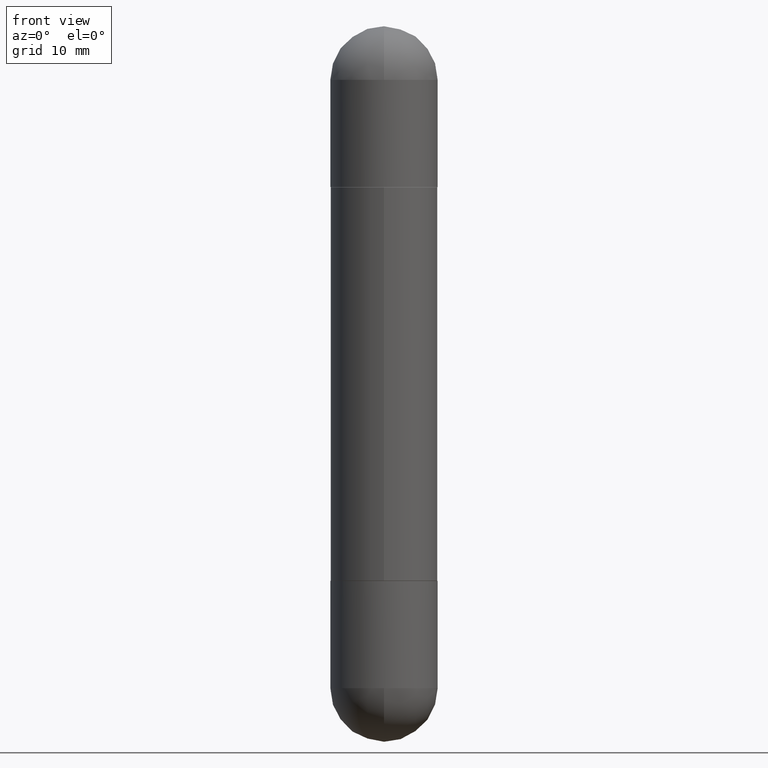
[diagram: clean part render]
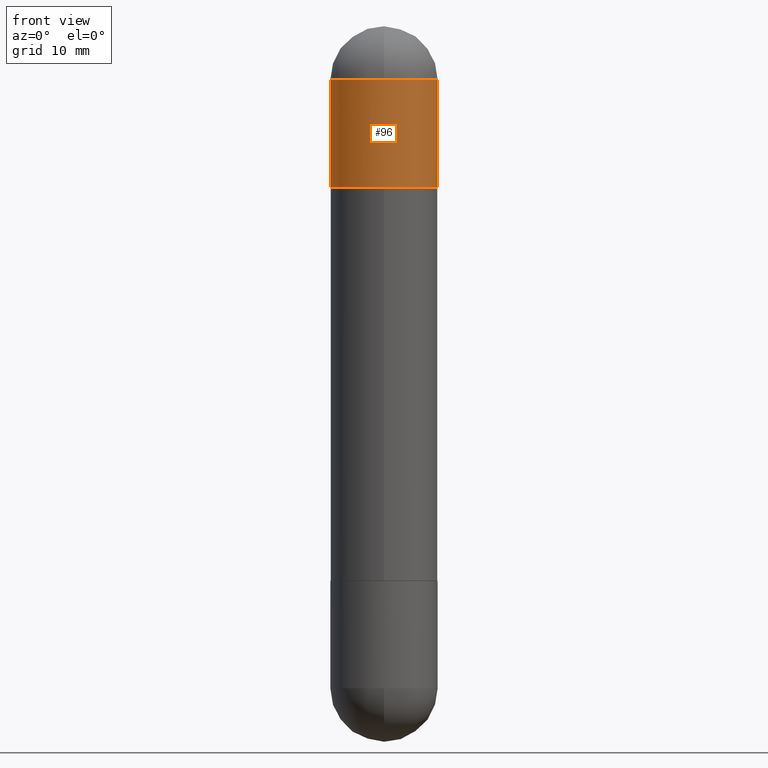
[diagram: same view with one face highlighted and labeled with its STEP entity id]
A machine part, front view. The second image highlights one B-rep face of the part: STEP entity #96.
In plain terms, the highlighted cylindrical surface (partial cylindrical patch) has radius 4.7625 mm, axis along (-0, 0, -1).
Its self-contained STEP definition (entity closure, byte-faithful):
#35 = CARTESIAN_POINT ( 'NONE',  ( 0.1875000000000000278, -8.075796336744191053E-15, -0.5620000000000007212 ) ) ;
#36 = VERTEX_POINT ( 'NONE', #502 ) ;
#49 = CARTESIAN_POINT ( 'NONE',  ( 5.655146614303128380E-29, -8.074050596074775072E-15, -0.1875000000000006661 ) ) ;
#52 = DIRECTION ( 'NONE',  ( -2.445468806185136877E-29, 3.491481338843145188E-15, -1.000000000000000000 ) ) ;
#69 = DIRECTION ( 'NONE',  ( 1.000000000000000000, -6.982962677686265922E-15, 0.000000000000000000 ) ) ;
#96 = ADVANCED_FACE ( 'NONE', ( #766 ), #572, .T. ) ;
#100 = CARTESIAN_POINT ( 'NONE',  ( -0.1875000000000000278, -6.133927340794232602E-15, -0.5620000000000007212 ) ) ;
#114 = LINE ( 'NONE', #736, #162 ) ;
#162 = VECTOR ( 'NONE', #52, 39.37007874015748143 ) ;
#173 = VERTEX_POINT ( 'NONE', #100 ) ;
#189 = DIRECTION ( 'NONE',  ( 1.000000000000000000, -6.982962677686270655E-15, 0.000000000000000000 ) ) ;
#194 = EDGE_CURVE ( 'NONE', #298, #173, #114, .T. ) ;
#196 = ORIENTED_EDGE ( 'NONE', *, *, #391, .T. ) ;
#199 = CARTESIAN_POINT ( 'NONE',  ( 0.1875000000000000555, -1.309305502066175205E-15, -2.500000000000000444 ) ) ;
#202 = CARTESIAN_POINT ( 'NONE',  ( 5.655146614303128380E-29, -8.074050596074775072E-15, -0.1875000000000006661 ) ) ;
#204 = CIRCLE ( 'NONE', #467, 0.1875000000000000555 ) ;
#234 = EDGE_CURVE ( 'NONE', #298, #36, #204, .T. ) ;
#235 = VERTEX_POINT ( 'NONE', #523 ) ;
#242 = DIRECTION ( 'NONE',  ( -2.445468806185136877E-29, 3.491481338843145188E-15, -1.000000000000000000 ) ) ;
#245 = LINE ( 'NONE', #199, #481 ) ;
#261 = DIRECTION ( 'NONE',  ( -2.445468806185136597E-29, 3.491481338843145583E-15, -1.000000000000000000 ) ) ;
#292 = AXIS2_PLACEMENT_3D ( 'NONE', #202, #388, #464 ) ;
#298 = VERTEX_POINT ( 'NONE', #612 ) ;
#310 = DIRECTION ( 'NONE',  ( 2.445468806185136597E-29, -3.491481338843145583E-15, 1.000000000000000000 ) ) ;
#369 = CIRCLE ( 'NONE', #496, 0.1875000000000000278 ) ;
#388 = DIRECTION ( 'NONE',  ( 2.445468806185136597E-29, -3.491481338843145583E-15, 1.000000000000000000 ) ) ;
#391 = EDGE_CURVE ( 'NONE', #173, #711, #369, .T. ) ;
#402 = ORIENTED_EDGE ( 'NONE', *, *, #194, .T. ) ;
#416 = CARTESIAN_POINT ( 'NONE',  ( 4.739318546386794397E-29, -6.766490834678016045E-15, -0.5620000000000007212 ) ) ;
#451 = DIRECTION ( 'NONE',  ( 1.000000000000000000, -6.982962677686266711E-15, 0.000000000000000000 ) ) ;
#464 = DIRECTION ( 'NONE',  ( 1.000000000000000000, -6.982962677686270655E-15, 0.000000000000000000 ) ) ;
#465 = ORIENTED_EDGE ( 'NONE', *, *, #487, .F. ) ;
#467 = AXIS2_PLACEMENT_3D ( 'NONE', #49, #310, #189 ) ;
#481 = VECTOR ( 'NONE', #242, 39.37007874015748143 ) ;
#487 = EDGE_CURVE ( 'NONE', #235, #711, #245, .T. ) ;
#496 = AXIS2_PLACEMENT_3D ( 'NONE', #416, #660, #451 ) ;
#502 = CARTESIAN_POINT ( 'NONE',  ( -1.286343374582108525E-15, -0.1875000000000084932, -0.1875000000000013045 ) ) ;
#523 = CARTESIAN_POINT ( 'NONE',  ( 0.1875000000000000555, -8.729576217442571356E-15, -0.1875000000000006661 ) ) ;
#572 = CYLINDRICAL_SURFACE ( 'NONE', #682, 0.1875000000000000555 ) ;
#612 = CARTESIAN_POINT ( 'NONE',  ( -0.1875000000000000555, -6.133927340794233391E-15, -0.1875000000000006661 ) ) ;
#641 = CARTESIAN_POINT ( 'NONE',  ( 0.000000000000000000, 0.000000000000000000, -2.500000000000000444 ) ) ;
#660 = DIRECTION ( 'NONE',  ( 2.445468806185136597E-29, -3.491481338843145583E-15, 1.000000000000000000 ) ) ;
#670 = EDGE_CURVE ( 'NONE', #36, #235, #684, .T. ) ;
#682 = AXIS2_PLACEMENT_3D ( 'NONE', #641, #261, #69 ) ;
#684 = CIRCLE ( 'NONE', #292, 0.1875000000000000555 ) ;
#707 = ORIENTED_EDGE ( 'NONE', *, *, #670, .F. ) ;
#711 = VERTEX_POINT ( 'NONE', #35 ) ;
#735 = EDGE_LOOP ( 'NONE', ( #805, #402, #196, #465, #707 ) ) ;
#736 = CARTESIAN_POINT ( 'NONE',  ( -0.1875000000000000555, 1.286343374582162562E-15, -2.500000000000000444 ) ) ;
#766 = FACE_OUTER_BOUND ( 'NONE', #735, .T. ) ;
#805 = ORIENTED_EDGE ( 'NONE', *, *, #234, .F. ) ;